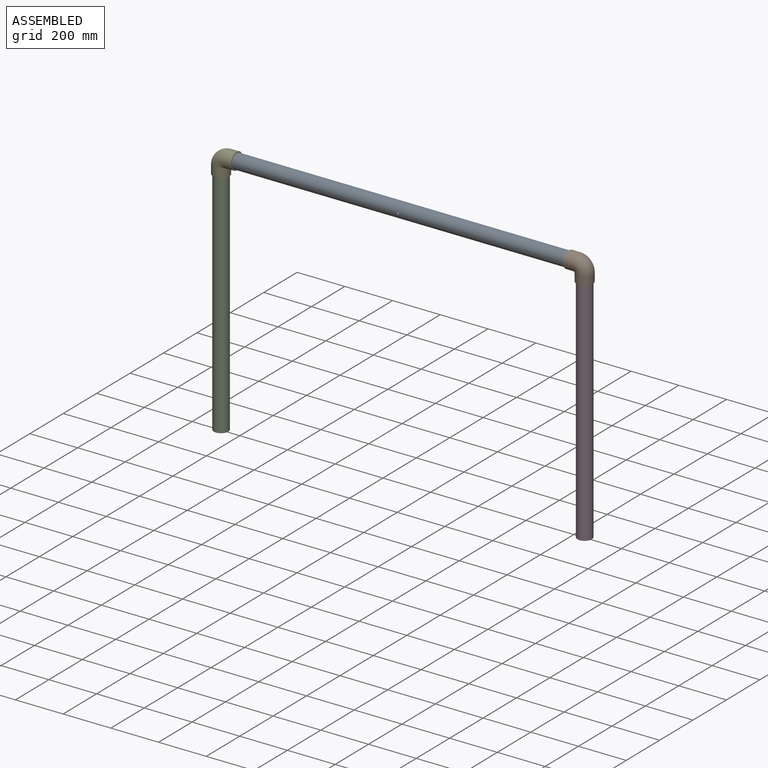
[diagram: assembled view]
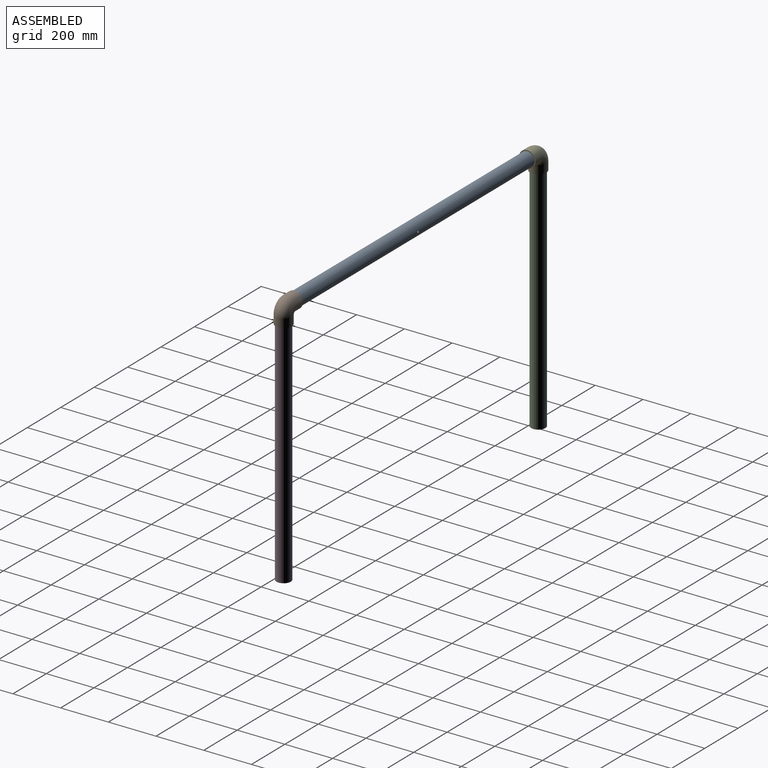
[diagram: assembled view, second angle]
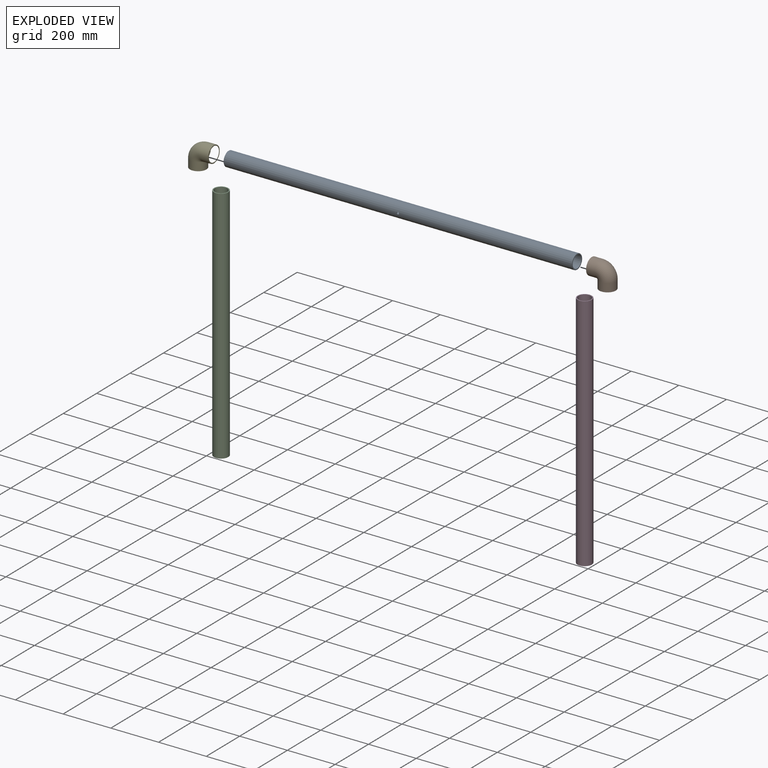
[diagram: exploded view]
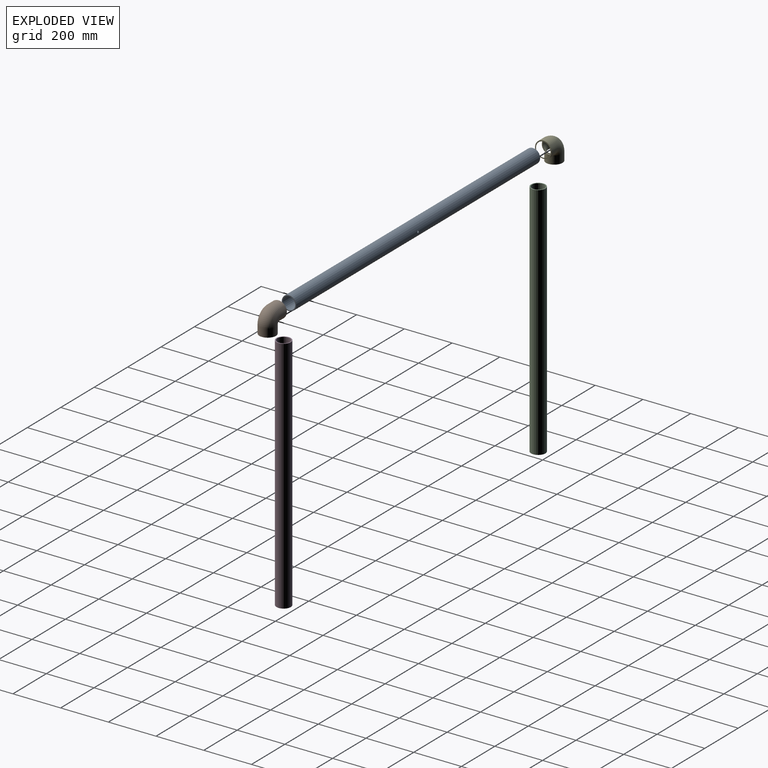
[diagram: exploded view, second angle]
ASSEMBLY  parts=5 mates=4
PART A: 6 faces, bbox 1460.5x60.5x60.5 mm
  f0: cylinder r=26.29mm len=1460.5mm, axis (1,0,0), area 241100.2mm2, adj f1,f3,f4,f5
  f1: plane 60.45x60.45mm, normal (-1,0,0), area 699mm2, adj f0,f2
  f2: cylinder r=30.23mm len=1460.5mm, axis (1,0,0), area 277228.6mm2, adj f1,f3,f4,f5
  f3: plane 60.45x60.45mm, normal (1,0,0), area 699mm2, adj f0,f2
  f4: cylinder r=4.76mm len=9.53mm, axis (0,-1,0), area 118.7mm2, adj f0,f2
  f5: cylinder r=4.76mm len=9.53mm, axis (0,-1,0), area 118.6mm2, adj f0,f2
PART B: 11 faces, bbox 100.6x100.6x69.3 mm
  f0: plane 69.34x69.34mm, normal (-1,0,0), area 889.3mm2, adj f1,f2
  f1: cone r=30.09mm half-angle=0.4deg, axis (-1,0,0), area 6476.8mm2, adj f0,f6
  f2: cylinder r=34.67mm len=69.34mm, axis (-1,0,0), area 7435.3mm2, adj f0,f4,f10
  f3: torus R=31.75mm, axis (0,0,-1), area 8226mm2, adj f5,f6
  f4: torus R=31.75mm, axis (0,0,-1), area 10945.6mm2, adj f2,f8,f10
  f5: plane 60.17x60.17mm, normal (0,1,0), area 678.8mm2, adj f3,f9
  f6: plane 60.17x60.17mm, normal (-1,0,0), area 678.8mm2, adj f1,f3
  f7: plane 69.34x69.34mm, normal (0,1,0), area 889.3mm2, adj f8,f9
  f8: cylinder r=34.67mm len=69.34mm, axis (0,-1,0), area 7435.3mm2, adj f4,f7,f10
  f9: cone r=30.31mm half-angle=0.4deg, axis (0,1,0), area 6476.8mm2, adj f5,f7
  f10: bspline ~36.2x6.62mm, area 78.7mm2, adj f2,f4,f8
PART C: 4 faces, bbox 60.5x60.5x1003.3 mm
  f0: cylinder r=26.29mm len=1003.3mm, axis (0,0,1), area 165723.7mm2, adj f1,f2
  f1: plane 60.45x60.45mm, normal (0,0,-1), area 699mm2, adj f0,f3
  f2: plane 60.45x60.45mm, normal (0,0,1), area 699mm2, adj f0,f3
  f3: cylinder r=30.23mm len=1003.3mm, axis (0,0,1), area 190542.3mm2, adj f1,f2
PART D: 4 faces, bbox 60.5x60.5x1003.3 mm
  f0: cylinder r=26.29mm len=1003.3mm, axis (0,0,1), area 165723.7mm2, adj f1,f2
  f1: plane 60.45x60.45mm, normal (0,0,-1), area 699mm2, adj f0,f3
  f2: plane 60.45x60.45mm, normal (0,0,1), area 699mm2, adj f0,f3
  f3: cylinder r=30.23mm len=1003.3mm, axis (0,0,1), area 190542.3mm2, adj f1,f2
PART E: same geometry as B
PLACE A at identity fixed
PLACE B rot(axis=(0.58,-0.58,0.58),120deg) t=(762,148.28,1216.02)mm
PLACE C at identity fixed
PLACE D at identity fixed
PLACE E rot(axis=(-0.58,-0.58,-0.58),120deg) t=(-762,148.28,1216.03)mm
MATE slider A.f0 <-> B.f8  axis (1,0,0) through (730.25,148.28,1216.02)mm
MATE slider C.f0 <-> E.f1  axis (0,0,1) through (-762,148.28,1184.28)mm
MATE slider E.f8 <-> A.f0  axis (1,0,0) through (-696.12,148.28,1216.03)mm
MATE slider B.f1 <-> D.f0  axis (0,0,-1) through (762,148.28,1150.14)mm
